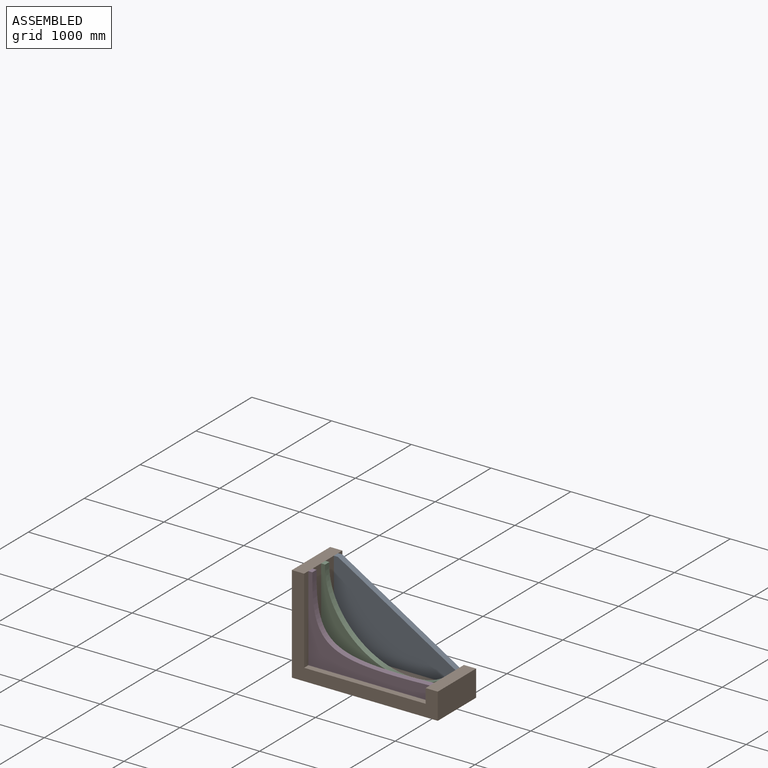
[diagram: assembled view]
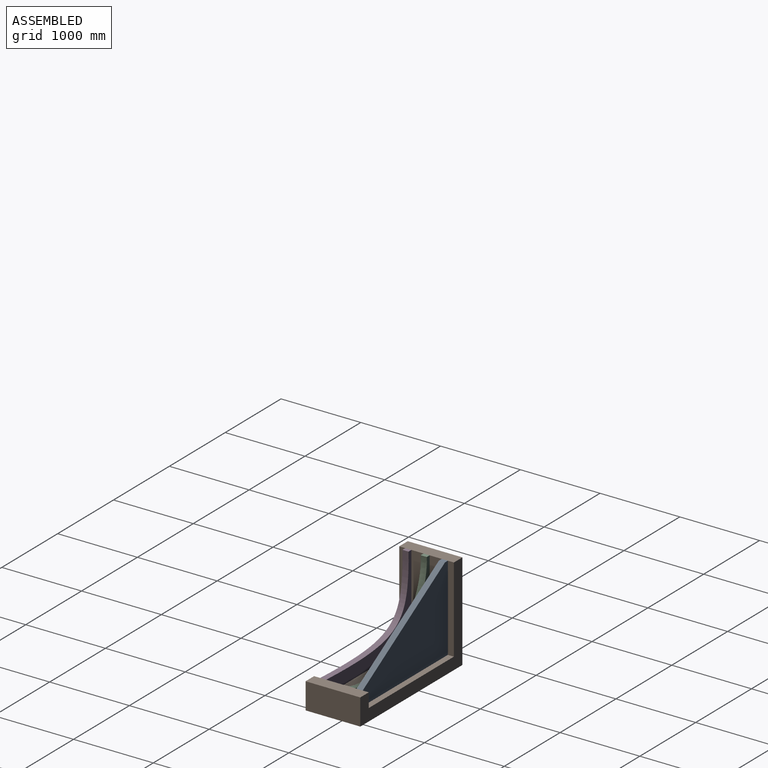
[diagram: assembled view, second angle]
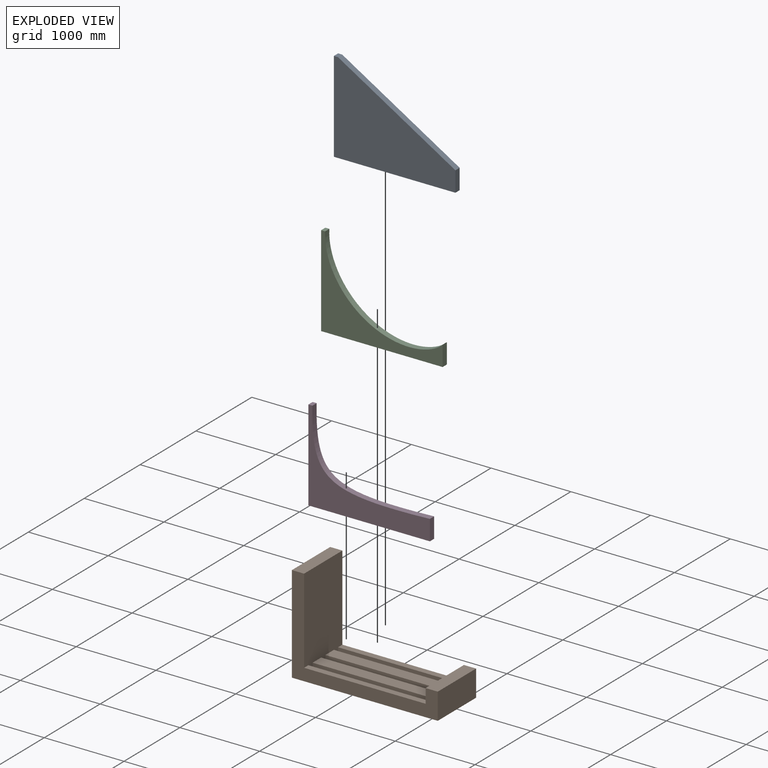
[diagram: exploded view]
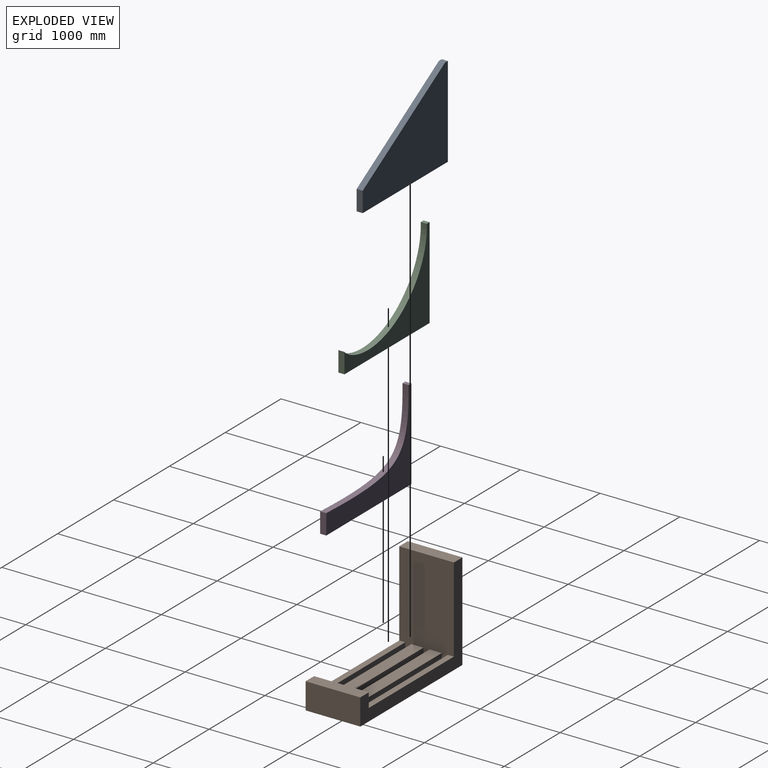
[diagram: exploded view, second angle]
ASSEMBLY  parts=4 mates=3
PART A: 7 faces, bbox 1524x76.2x1143 mm
  f0: plane 1143x76.2mm, normal (-1,0,0), area 87096.6mm2, adj f1,f4,f5,f6
  f1: plane 1524x76.2mm, normal (0,0,-1), area 116128.8mm2, adj f0,f2,f5,f6
  f2: plane 254x76.2mm, normal (1,0,0), area 19354.8mm2, adj f1,f3,f5,f6
  f3: plane 1473.2x889mm, normal (0.52,0,0.86), area 131113.6mm2, adj f2,f4,f5,f6
  f4: plane 76.2x50.8mm, normal (0,0,1), area 3871mm2, adj f0,f3,f5,f6
  f5: plane 1524x1143mm, normal (0,-1,0), area 1087094.6mm2, adj f0,f1,f2,f3,f4
  f6: plane 1524x1143mm, normal (0,1,0), area 1087094.6mm2, adj f0,f1,f2,f3,f4
PART B: 22 faces, bbox 1828.8x685.8x1219.2 mm
  f0: plane 1524x76.2mm, normal (0,0,1), area 116128.8mm2, adj f7,f9,f11,f20
  f1: plane 1524x152.4mm, normal (0,0,1), area 232257.6mm2, adj f7,f9,f17,f19
  f2: plane 1524x152.4mm, normal (0,0,1), area 232257.6mm2, adj f7,f9,f14,f16
  f3: plane 1219.2x685.8mm, normal (-1,0,0), area 836127.4mm2, adj f4,f10,f11,f12
  f4: plane 1828.8x685.8mm, normal (0,0,-1), area 1254191mm2, adj f3,f5,f11,f12
  f5: plane 685.8x330.2mm, normal (1,0,0), area 226451.2mm2, adj f4,f6,f11,f12
  f6: plane 685.8x152.4mm, normal (0,0,1), area 104515.9mm2, adj f5,f7,f11,f12
  f7: plane 685.8x254mm, normal (-1,0,0), area 139354.6mm2, adj f0,f1,f2,f6,f8,f11,f12,f13
  f8: plane 1524x76.2mm, normal (0,0,1), area 116128.8mm2, adj f7,f9,f12,f13
  f9: plane 1143x685.8mm, normal (1,0,0), area 749030.8mm2, adj f0,f1,f2,f8,f10,f11,f12,f13
  f10: plane 685.8x152.4mm, normal (0,0,1), area 104515.9mm2, adj f3,f9,f11,f12
  f11: plane 1828.8x1219.2mm, normal (0,-1,0), area 468386.2mm2, adj f0,f3,f4,f5,f6,f7,f9,f10
  f12: plane 1828.8x1219.2mm, normal (0,1,0), area 468386.2mm2, adj f3,f4,f5,f6,f7,f8,f9,f10
  f13: plane 1524x76.2mm, normal (0,-1,0), area 116128.8mm2, adj f7,f8,f9,f15
  f14: plane 1524x76.2mm, normal (0,1,0), area 116128.8mm2, adj f2,f7,f9,f15
  f15: plane 1524x76.2mm, normal (0,0,1), area 116128.8mm2, adj f7,f9,f13,f14
  f16: plane 1524x76.2mm, normal (0,-1,0), area 116128.8mm2, adj f2,f7,f9,f18
  f17: plane 1524x76.2mm, normal (0,1,0), area 116128.8mm2, adj f1,f7,f9,f18
  f18: plane 1524x76.2mm, normal (0,0,1), area 116128.8mm2, adj f7,f9,f16,f17
  f19: plane 1524x76.2mm, normal (0,-1,0), area 116128.8mm2, adj f1,f7,f9,f21
  f20: plane 1524x76.2mm, normal (0,1,0), area 116128.8mm2, adj f0,f7,f9,f21
  f21: plane 1524x76.2mm, normal (0,0,1), area 116128.8mm2, adj f7,f9,f19,f20
PART C: 7 faces, bbox 1905x76.2x1112.4 mm
  f0: plane 1223.62x908.48mm, normal (0.6,0,0.8), area 116128.8mm2, adj f1,f4,f5,f6
  f1: plane 917.71x681.36mm, normal (-0.8,0,0.6), area 87096.6mm2, adj f0,f2,f5,f6
  f2: plane 76.2x40.79mm, normal (-0.6,0,-0.8), area 3871mm2, adj f1,f3,f5,f6
  f3: extruded ~1712.78x565.9mm, area 158930.6mm2, adj f2,f4,f5,f6
  f4: plane 203.94x151.41mm, normal (0.8,0,-0.6), area 19354.8mm2, adj f0,f3,f5,f6
  f5: plane 1904.98x1112.42mm, normal (0,-1,0), area 479752.9mm2, adj f0,f1,f2,f3,f4
  f6: plane 1904.98x1112.42mm, normal (0,1,0), area 479752.9mm2, adj f0,f1,f2,f3,f4
PART D: 7 faces, bbox 1524x76.2x1143 mm
  f0: plane 1143x76.2mm, normal (-1,0,0), area 87096.6mm2, adj f1,f4,f5,f6
  f1: plane 1524x76.2mm, normal (0,0,-1), area 116128.8mm2, adj f0,f2,f5,f6
  f2: plane 254x76.2mm, normal (1,0,0), area 19354.8mm2, adj f1,f3,f5,f6
  f3: extruded ~1474.31x900.07mm, area 160153.5mm2, adj f2,f4,f5,f6
  f4: plane 76.2x50.8mm, normal (0,0,1), area 3871mm2, adj f0,f3,f5,f6
  f5: plane 1524x1143mm, normal (0,-1,0), area 508053.2mm2, adj f0,f1,f2,f3,f4
  f6: plane 1524x1143mm, normal (0,1,0), area 508053.2mm2, adj f0,f1,f2,f3,f4
PLACE A t=(-1533.12,-797.45,-711.85)mm
PLACE B t=(-718.9,-721.25,-808.33)mm fixed
PLACE C rot(axis=(0.95,0,-0.31),180deg) t=(-1461.16,-1102.25,602.05)mm
PLACE D t=(-1503.8,-1254.65,-711.85)mm
MATE planar B.f21 <-> D.f1  axis (0,0,1) through (-795.61,-1292.75,-711.85)mm
MATE planar B.f15 <-> A.f1  axis (0,0,1) through (-795.61,-835.55,-711.85)mm
MATE planar B.f18 <-> C.f0  axis (0,0,1) through (-795.61,-1064.15,-711.85)mm
